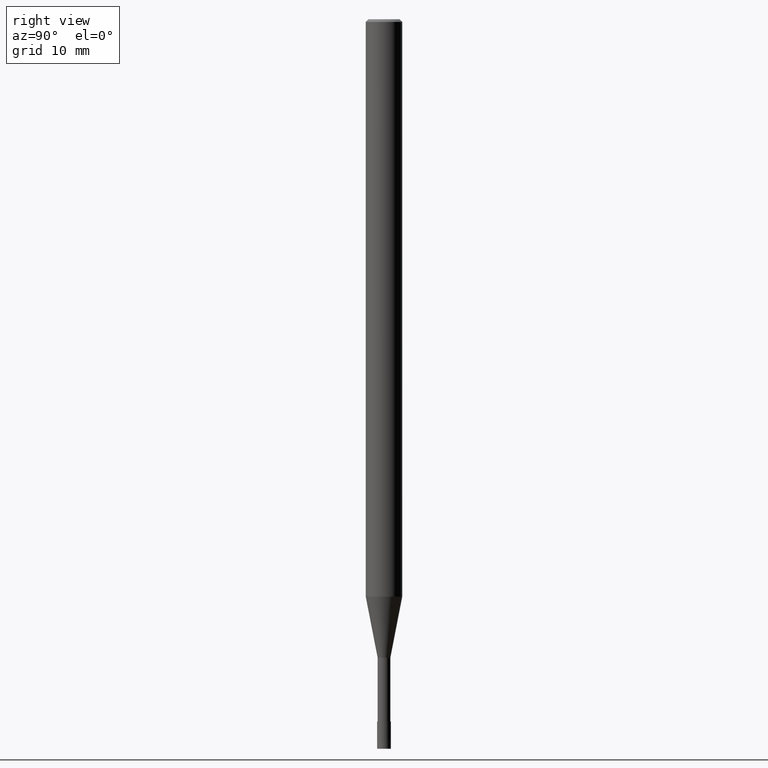
[diagram: clean part render]
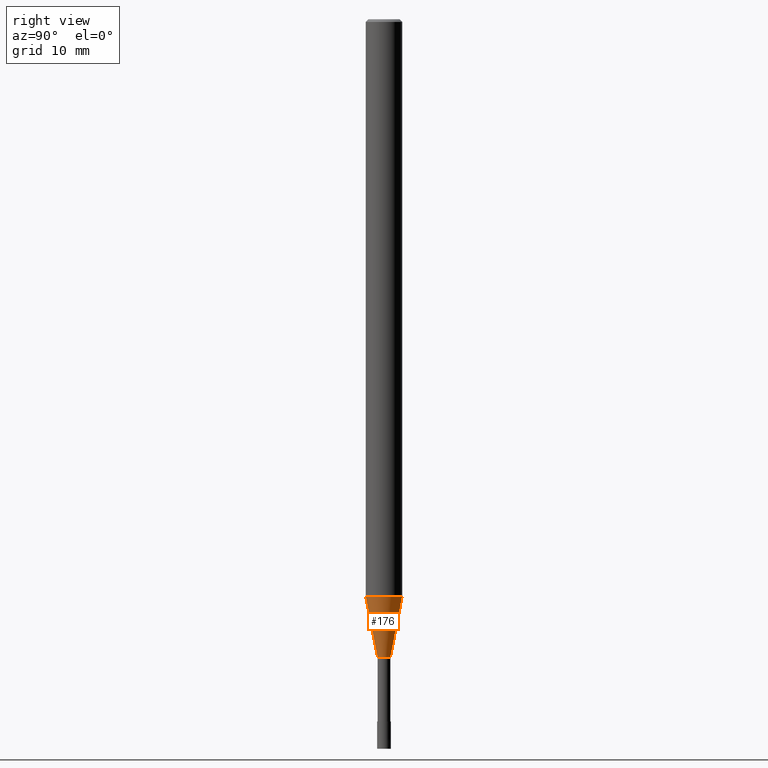
[diagram: same view with one face highlighted and labeled with its STEP entity id]
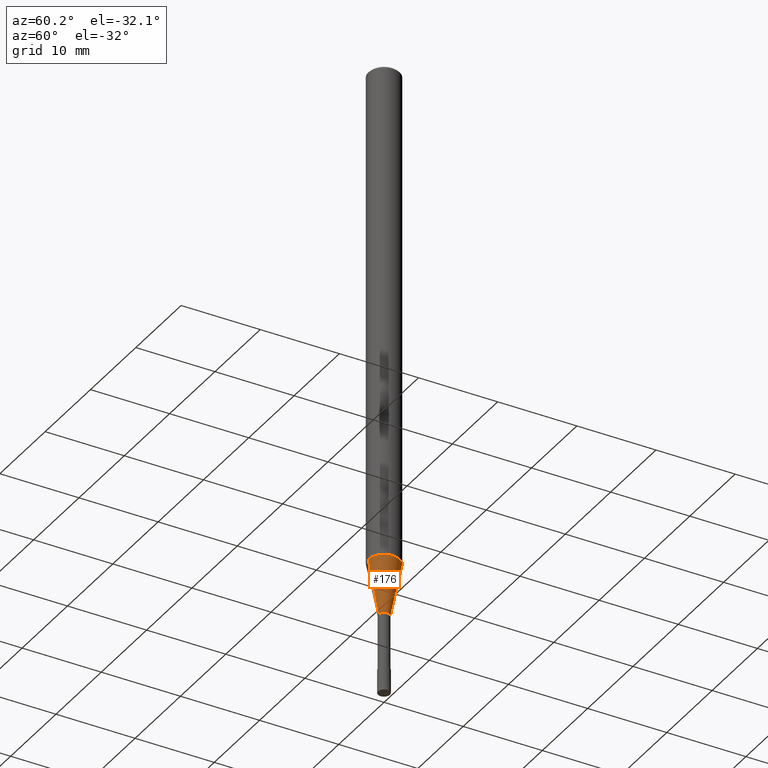
[diagram: same view with one face highlighted and labeled with its STEP entity id]
A machine part, right view. The second image highlights one B-rep face of the part: STEP entity #176.
A second angle (auxiliary view) of the same face is appended — the face is thin or edge-on in the first view.
In plain terms, the highlighted conical surface has half-angle 11 deg.
Its self-contained STEP definition (entity closure, byte-faithful):
#110=VERTEX_POINT('',#250);
#112=EDGE_CURVE('',#204,#144,#252,.T.);
#142=EDGE_CURVE('',#156,#110,#288,.T.);
#144=VERTEX_POINT('',#290);
#156=VERTEX_POINT('',#304);
#176=ADVANCED_FACE('',(#325),#326,.T.);
#190=EDGE_CURVE('',#144,#156,#342,.T.);
#192=EDGE_CURVE('',#204,#110,#344,.T.);
#204=VERTEX_POINT('',#357);
#250=CARTESIAN_POINT('',(2.44915147732706E-016,-1.99995,-63.312));
#252=LINE('',#404,#405);
#288=LINE('',#447,#448);
#290=CARTESIAN_POINT('',(0.0,0.69995,-70.0));
#304=CARTESIAN_POINT('',(8.57163217357973E-017,-0.69995,-70.0));
#325=FACE_OUTER_BOUND('',#492,.T.);
#326=CONICAL_SURFACE('',#493,1.34995,0.191983983430966);
#342=CIRCLE('',#513,0.69995);
#344=CIRCLE('',#516,1.99995);
#357=CARTESIAN_POINT('',(0.0,1.99995,-63.312));
#404=CARTESIAN_POINT('',(-1.65315734734252E-016,1.34995,-66.656));
#405=VECTOR('',#572,1.0);
#447=CARTESIAN_POINT('',(1.65315734734252E-016,-1.34995,-66.656));
#448=VECTOR('',#625,1.0);
#492=EDGE_LOOP('',(#659,#660,#661,#662));
#493=AXIS2_PLACEMENT_3D('',#663,#664,#665);
#513=AXIS2_PLACEMENT_3D('',#684,#685,#686);
#516=AXIS2_PLACEMENT_3D('',#687,#688,#689);
#572=DIRECTION('',(2.33663222250515E-017,-0.19080680213783,-0.981627609767541));
#625=DIRECTION('',(2.33663222250515E-017,-0.19080680213783,0.981627609767541));
#659=ORIENTED_EDGE('',*,*,#112,.F.);
#660=ORIENTED_EDGE('',*,*,#192,.T.);
#661=ORIENTED_EDGE('',*,*,#142,.F.);
#662=ORIENTED_EDGE('',*,*,#190,.F.);
#663=CARTESIAN_POINT('',(0.0,0.0,-66.656));
#664=DIRECTION('',(-0.0,-0.0,1.0));
#665=DIRECTION('',(0.0,1.0,0.0));
#684=CARTESIAN_POINT('',(0.0,0.0,-70.0));
#685=DIRECTION('',(0.0,0.0,-1.0));
#686=DIRECTION('',(0.0,1.0,0.0));
#687=CARTESIAN_POINT('',(0.0,0.0,-63.312));
#688=DIRECTION('',(0.0,0.0,-1.0));
#689=DIRECTION('',(0.0,1.0,0.0));